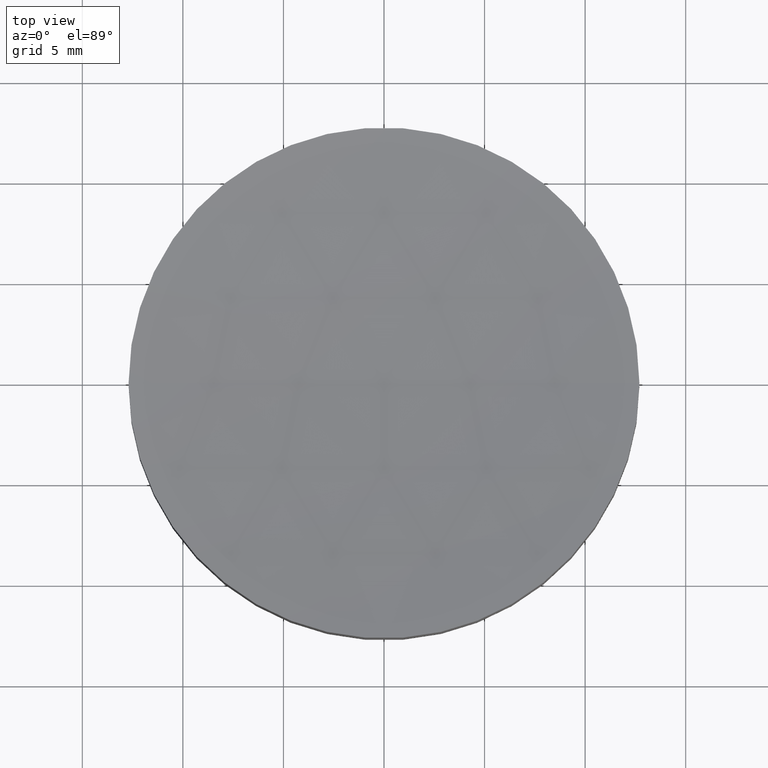
[diagram: clean part render]
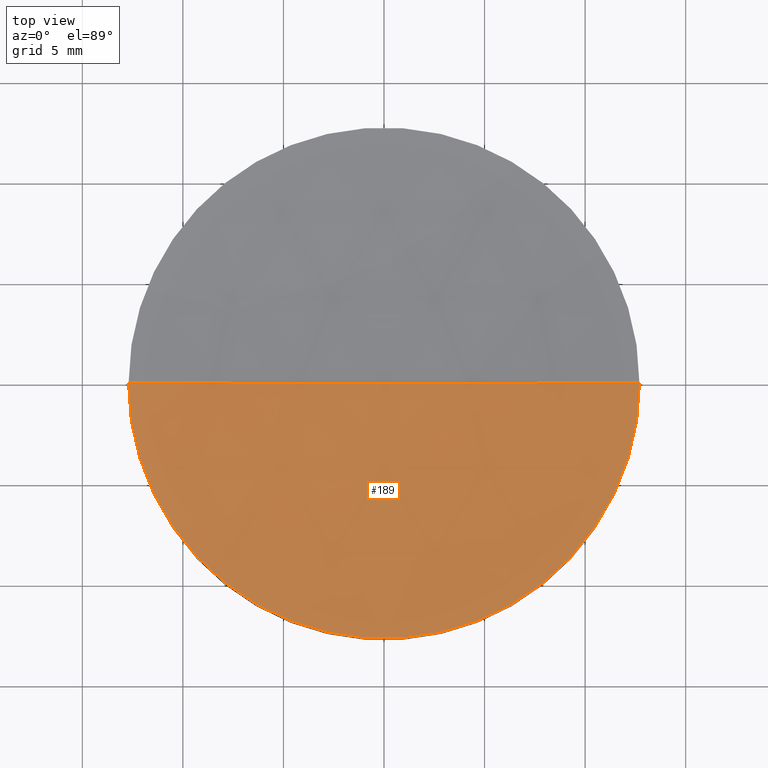
[diagram: same view with one face highlighted and labeled with its STEP entity id]
A machine part, top view. The second image highlights one B-rep face of the part: STEP entity #189.
In plain terms, the highlighted spherical surface has radius 100 mm.
Its self-contained STEP definition (entity closure, byte-faithful):
#3 = DIRECTION ( 'NONE',  ( 1.000000000000000000, 1.224646799147353207E-16, 0.000000000000000000 ) ) ;
#6 = DIRECTION ( 'NONE',  ( -0.000000000000000000, -0.000000000000000000, -1.000000000000000000 ) ) ;
#36 = DIRECTION ( 'NONE',  ( 0.000000000000000000, 0.000000000000000000, 1.000000000000000000 ) ) ;
#38 = ORIENTED_EDGE ( 'NONE', *, *, #94, .T. ) ;
#39 = EDGE_CURVE ( 'NONE', #87, #42, #59, .T. ) ;
#40 = CARTESIAN_POINT ( 'NONE',  ( 12.70000000000000284, 1.555301434917138827E-15, 6.000000000000005329 ) ) ;
#41 = CARTESIAN_POINT ( 'NONE',  ( 1.387778780781445676E-14, 0.000000000000000000, 105.1902717004041818 ) ) ;
#42 = VERTEX_POINT ( 'NONE', #112 ) ;
#48 = CARTESIAN_POINT ( 'NONE',  ( -12.69999999999997264, 0.000000000000000000, 6.000000000000005329 ) ) ;
#51 = VERTEX_POINT ( 'NONE', #40 ) ;
#54 = FACE_OUTER_BOUND ( 'NONE', #84, .T. ) ;
#59 = CIRCLE ( 'NONE', #190, 100.0000000000000000 ) ;
#75 = DIRECTION ( 'NONE',  ( 1.000000000000000000, 0.000000000000000000, 0.000000000000000000 ) ) ;
#84 = EDGE_LOOP ( 'NONE', ( #198, #184, #38 ) ) ;
#86 = CARTESIAN_POINT ( 'NONE',  ( 1.387778780781445676E-14, 0.000000000000000000, 105.1902717004041818 ) ) ;
#87 = VERTEX_POINT ( 'NONE', #48 ) ;
#94 = EDGE_CURVE ( 'NONE', #51, #42, #177, .T. ) ;
#98 = CARTESIAN_POINT ( 'NONE',  ( 1.387778780781445676E-14, 0.000000000000000000, 6.000000000000005329 ) ) ;
#102 = DIRECTION ( 'NONE',  ( 1.224646799147353207E-16, -1.000000000000000000, 0.000000000000000000 ) ) ;
#112 = CARTESIAN_POINT ( 'NONE',  ( 2.000102180355122047E-14, 0.000000000000000000, 5.190271700404175625 ) ) ;
#128 = DIRECTION ( 'NONE',  ( 1.000000000000000000, 0.000000000000000000, 0.000000000000000000 ) ) ;
#132 = CIRCLE ( 'NONE', #170, 12.69999999999998685 ) ;
#137 = CARTESIAN_POINT ( 'NONE',  ( 1.387778780781445676E-14, 0.000000000000000000, 105.1902717004041818 ) ) ;
#160 = EDGE_CURVE ( 'NONE', #51, #87, #132, .T. ) ;
#165 = AXIS2_PLACEMENT_3D ( 'NONE', #86, #181, #36 ) ;
#170 = AXIS2_PLACEMENT_3D ( 'NONE', #98, #6, #128 ) ;
#175 = AXIS2_PLACEMENT_3D ( 'NONE', #137, #187, #75 ) ;
#177 = CIRCLE ( 'NONE', #165, 100.0000000000000000 ) ;
#181 = DIRECTION ( 'NONE',  ( 0.000000000000000000, 1.000000000000000000, -0.000000000000000000 ) ) ;
#184 = ORIENTED_EDGE ( 'NONE', *, *, #160, .F. ) ;
#187 = DIRECTION ( 'NONE',  ( 0.000000000000000000, -1.000000000000000000, -0.000000000000000000 ) ) ;
#189 = ADVANCED_FACE ( 'NONE', ( #54 ), #200, .F. ) ;
#190 = AXIS2_PLACEMENT_3D ( 'NONE', #41, #102, #3 ) ;
#198 = ORIENTED_EDGE ( 'NONE', *, *, #39, .F. ) ;
#200 = SPHERICAL_SURFACE ( 'NONE', #175, 100.0000000000000000 ) ;